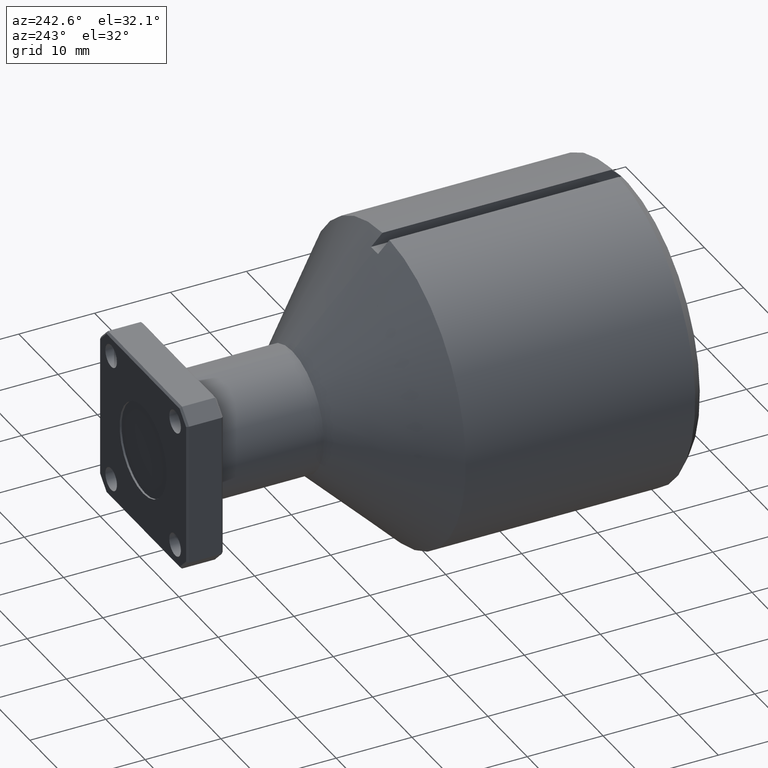
[diagram: clean part render]
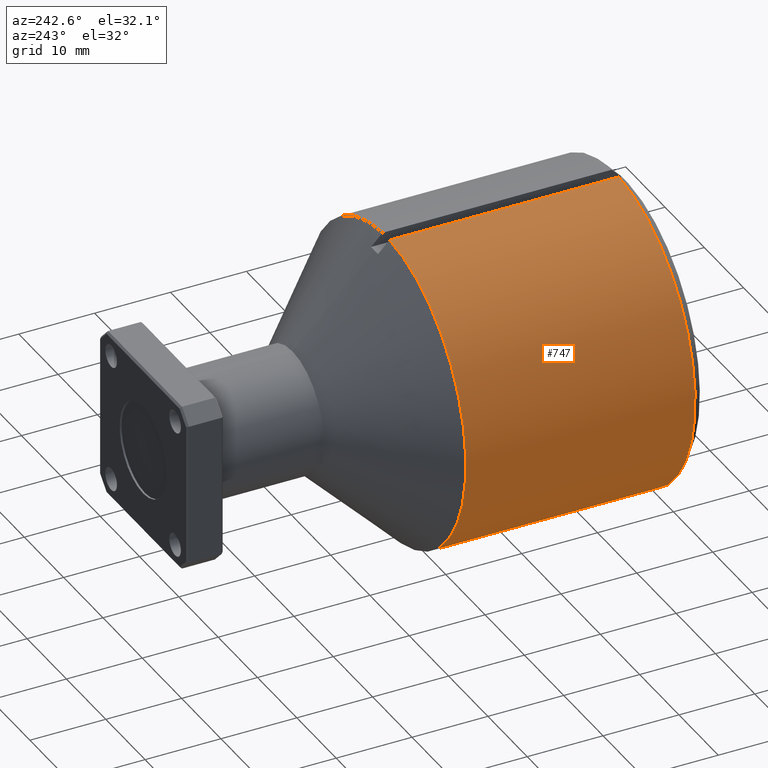
[diagram: same view with one face highlighted and labeled with its STEP entity id]
A machine part, auxiliary view. The second image highlights one B-rep face of the part: STEP entity #747.
In plain terms, the highlighted cylindrical surface (partial cylindrical patch) has radius 20.32 mm, axis along (-0, -1, -0).
Its self-contained STEP definition (entity closure, byte-faithful):
#38 = ORIENTED_EDGE ( 'NONE', *, *, #234, .T. ) ;
#46 = ORIENTED_EDGE ( 'NONE', *, *, #235, .T. ) ;
#159 = FACE_OUTER_BOUND ( 'NONE', #951, .T. ) ;
#234 = EDGE_CURVE ( 'NONE', #1110, #937, #1383, .T. ) ;
#235 = EDGE_CURVE ( 'NONE', #1164, #1110, #439, .T. ) ;
#259 = CARTESIAN_POINT ( 'NONE',  ( -0.03500000000000003803, 0.1066873671862697964, 2.619230403624036807 ) ) ;
#306 = DIRECTION ( 'NONE',  ( 0.000000000000000000, 0.000000000000000000, 1.000000000000000000 ) ) ;
#339 = LINE ( 'NONE', #699, #564 ) ;
#388 = EDGE_CURVE ( 'NONE', #937, #1064, #1244, .T. ) ;
#414 = DIRECTION ( 'NONE',  ( 0.000000000000000000, 1.000000000000000000, 0.000000000000000000 ) ) ;
#430 = DIRECTION ( 'NONE',  ( -0.000000000000000000, -1.000000000000000000, -0.000000000000000000 ) ) ;
#439 = CIRCLE ( 'NONE', #1273, 0.8000000000000001554 ) ;
#481 = EDGE_CURVE ( 'NONE', #1064, #1164, #339, .T. ) ;
#516 = ORIENTED_EDGE ( 'NONE', *, *, #388, .T. ) ;
#519 = DIRECTION ( 'NONE',  ( -0.000000000000000000, -1.000000000000000000, -0.000000000000000000 ) ) ;
#535 = AXIS2_PLACEMENT_3D ( 'NONE', #1510, #430, #908 ) ;
#564 = VECTOR ( 'NONE', #799, 39.37007874015748143 ) ;
#654 = AXIS2_PLACEMENT_3D ( 'NONE', #1115, #519, #1361 ) ;
#699 = CARTESIAN_POINT ( 'NONE',  ( 0.000000000000000000, -1.133357296908698908, 1.019996395338603534 ) ) ;
#747 = ADVANCED_FACE ( 'NONE', ( #159 ), #1016, .T. ) ;
#799 = DIRECTION ( 'NONE',  ( -0.000000000000000000, -1.000000000000000000, -0.000000000000000000 ) ) ;
#873 = CARTESIAN_POINT ( 'NONE',  ( -0.03500000000000003803, -1.133357296908698908, 2.619230403624036807 ) ) ;
#908 = DIRECTION ( 'NONE',  ( 0.000000000000000000, 0.000000000000000000, -1.000000000000000000 ) ) ;
#915 = VECTOR ( 'NONE', #414, 39.37007874015748143 ) ;
#933 = ORIENTED_EDGE ( 'NONE', *, *, #481, .T. ) ;
#937 = VERTEX_POINT ( 'NONE', #259 ) ;
#951 = EDGE_LOOP ( 'NONE', ( #516, #933, #46, #38 ) ) ;
#1016 = CYLINDRICAL_SURFACE ( 'NONE', #654, 0.8000000000000001554 ) ;
#1064 = VERTEX_POINT ( 'NONE', #1391 ) ;
#1110 = VERTEX_POINT ( 'NONE', #1417 ) ;
#1115 = CARTESIAN_POINT ( 'NONE',  ( 0.000000000000000000, -1.133357296908698908, 1.819996395338603579 ) ) ;
#1122 = CARTESIAN_POINT ( 'NONE',  ( 0.000000000000000000, -1.083357296908699086, 1.819996395338603579 ) ) ;
#1164 = VERTEX_POINT ( 'NONE', #1548 ) ;
#1244 = CIRCLE ( 'NONE', #535, 0.8000000000000001554 ) ;
#1267 = DIRECTION ( 'NONE',  ( 0.000000000000000000, 1.000000000000000000, 0.000000000000000000 ) ) ;
#1273 = AXIS2_PLACEMENT_3D ( 'NONE', #1122, #1267, #306 ) ;
#1361 = DIRECTION ( 'NONE',  ( 0.000000000000000000, 0.000000000000000000, -1.000000000000000000 ) ) ;
#1383 = LINE ( 'NONE', #873, #915 ) ;
#1391 = CARTESIAN_POINT ( 'NONE',  ( 0.000000000000000000, 0.1066873671862697964, 1.019996395338603534 ) ) ;
#1417 = CARTESIAN_POINT ( 'NONE',  ( -0.03500000000000003803, -1.083357296908699308, 2.619230403624036807 ) ) ;
#1510 = CARTESIAN_POINT ( 'NONE',  ( 0.000000000000000000, 0.1066873671862697964, 1.819996395338603579 ) ) ;
#1548 = CARTESIAN_POINT ( 'NONE',  ( 0.000000000000000000, -1.083357296908699086, 1.019996395338603534 ) ) ;